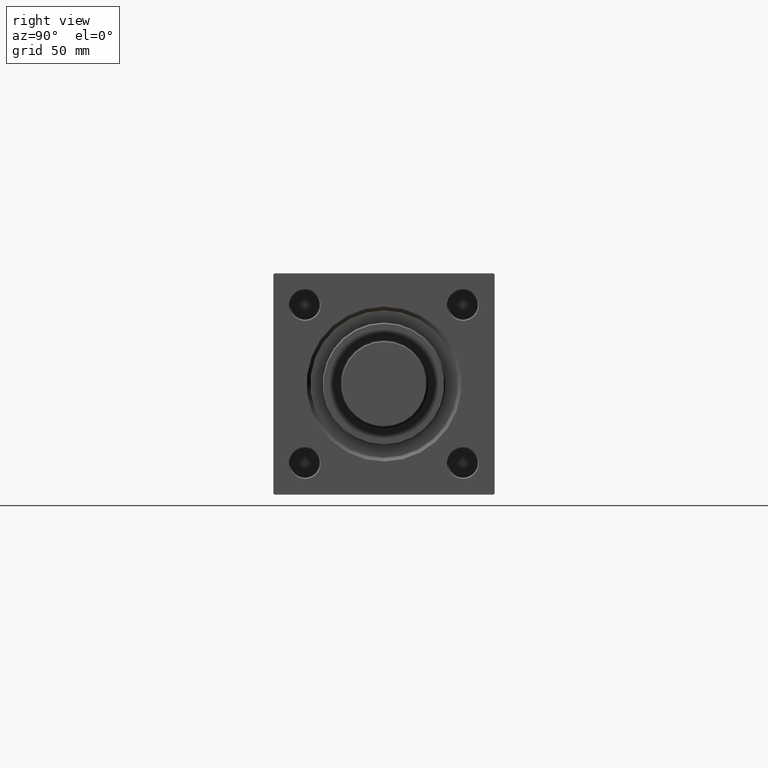
[diagram: clean part render]
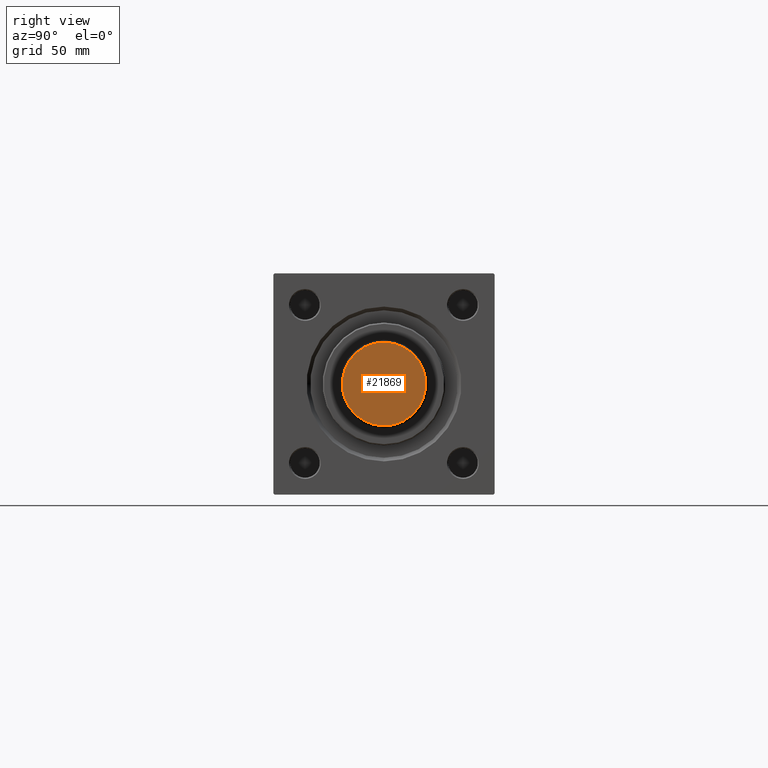
[diagram: same view with one face highlighted and labeled with its STEP entity id]
A machine part, right view. The second image highlights one B-rep face of the part: STEP entity #21869.
In plain terms, the highlighted planar face has unit normal (1, 0, -0).
Its self-contained STEP definition (entity closure, byte-faithful):
#1585 = CARTESIAN_POINT ( 'NONE',  ( -17.00000000000000355, 2.112515728529184856E-15, 0.000000000000000000 ) ) ;
#2931 = DIRECTION ( 'NONE',  ( 0.000000000000000000, 0.000000000000000000, 1.000000000000000000 ) ) ;
#2964 = EDGE_CURVE ( 'NONE', #31835, #42772, #39299, .T. ) ;
#6645 = CIRCLE ( 'NONE', #47575, 17.00000000000000355 ) ;
#7301 = DIRECTION ( 'NONE',  ( 1.000000000000000000, 0.000000000000000000, -0.000000000000000000 ) ) ;
#8144 = FACE_OUTER_BOUND ( 'NONE', #39651, .T. ) ;
#10129 = DIRECTION ( 'NONE',  ( 0.000000000000000000, 0.000000000000000000, 1.000000000000000000 ) ) ;
#12265 = AXIS2_PLACEMENT_3D ( 'NONE', #18568, #10129, #49071 ) ;
#18568 = CARTESIAN_POINT ( 'NONE',  ( 0.000000000000000000, 0.000000000000000000, 0.000000000000000000 ) ) ;
#21869 = ADVANCED_FACE ( 'NONE', ( #8144 ), #38407, .T. ) ;
#24118 = ORIENTED_EDGE ( 'NONE', *, *, #36700, .T. ) ;
#26735 = ORIENTED_EDGE ( 'NONE', *, *, #2964, .T. ) ;
#31835 = VERTEX_POINT ( 'NONE', #1585 ) ;
#36700 = EDGE_CURVE ( 'NONE', #42772, #31835, #6645, .T. ) ;
#37557 = CARTESIAN_POINT ( 'NONE',  ( 0.000000000000000000, 0.000000000000000000, 0.000000000000000000 ) ) ;
#38095 = DIRECTION ( 'NONE',  ( 1.000000000000000000, 0.000000000000000000, 0.000000000000000000 ) ) ;
#38407 = PLANE ( 'NONE',  #50474 ) ;
#39299 = CIRCLE ( 'NONE', #12265, 17.00000000000000355 ) ;
#39651 = EDGE_LOOP ( 'NONE', ( #24118, #26735 ) ) ;
#42772 = VERTEX_POINT ( 'NONE', #46526 ) ;
#46021 = DIRECTION ( 'NONE',  ( 0.000000000000000000, 0.000000000000000000, 1.000000000000000000 ) ) ;
#46526 = CARTESIAN_POINT ( 'NONE',  ( 17.00000000000000355, 0.000000000000000000, 0.000000000000000000 ) ) ;
#47575 = AXIS2_PLACEMENT_3D ( 'NONE', #50371, #46021, #38095 ) ;
#49071 = DIRECTION ( 'NONE',  ( 1.000000000000000000, 0.000000000000000000, 0.000000000000000000 ) ) ;
#50371 = CARTESIAN_POINT ( 'NONE',  ( 0.000000000000000000, 0.000000000000000000, 0.000000000000000000 ) ) ;
#50474 = AXIS2_PLACEMENT_3D ( 'NONE', #37557, #2931, #7301 ) ;